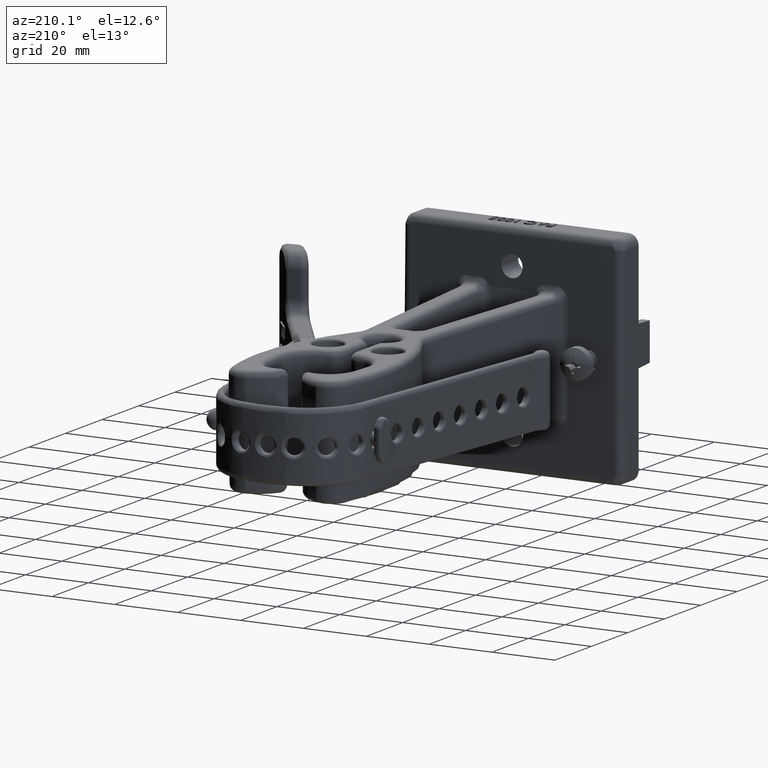
[diagram: clean part render]
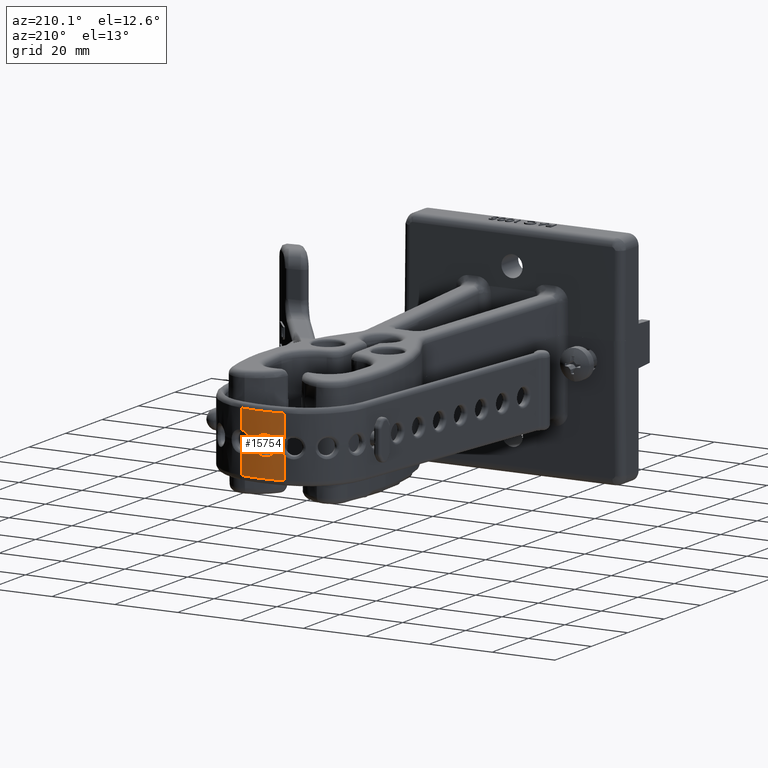
[diagram: same view with one face highlighted and labeled with its STEP entity id]
A machine part, auxiliary view. The second image highlights one B-rep face of the part: STEP entity #15754.
In plain terms, the highlighted cylindrical surface (partial cylindrical patch) has radius 37.703 mm, axis along (0, 0, 1).
Its self-contained STEP definition (entity closure, byte-faithful):
#2529 = CARTESIAN_POINT ( 'NONE',  ( -0.04435273395711793900, 5.269710581446657800, -0.1312497044361200800 ) ) ;
#2530 = CARTESIAN_POINT ( 'NONE',  ( -0.04516568751370418600, 5.269685953343534700, 0.1312489805817856300 ) ) ;
#2534 = CARTESIAN_POINT ( 'NONE',  ( 0.2673774705017385500, 5.246133752176259400, -0.1301733078765255100 ) ) ;
#2535 = CARTESIAN_POINT ( 'NONE',  ( 0.2673774705017385500, 5.246133752176259400, -0.3749999999999998900 ) ) ;
#2536 = CARTESIAN_POINT ( 'NONE',  ( 0.2673774705017385500, 5.246133752176259400, 0.1301733078765255100 ) ) ;
#2537 = CARTESIAN_POINT ( 'NONE',  ( 0.2673774705017385500, 5.246133752176259400, 0.3750000000000000600 ) ) ;
#2550 = CARTESIAN_POINT ( 'NONE',  ( -0.2669934998263762100, 5.246135022495447100, -0.3749999999999998900 ) ) ;
#2551 = CARTESIAN_POINT ( 'NONE',  ( -0.2669934998263762100, 5.246135022495447100, -0.08806893851219231600 ) ) ;
#2552 = CARTESIAN_POINT ( 'NONE',  ( -0.2669934998263762100, 5.246135022495447100, 0.08806893851219189900 ) ) ;
#2553 = CARTESIAN_POINT ( 'NONE',  ( -0.2669934998263762100, 5.246135022495447100, 0.3750000000000000600 ) ) ;
#15754 = ADVANCED_FACE ( 'NONE', ( #25073, #25077 ), #25076, .T. ) ;
#16780 = VERTEX_POINT ( 'NONE', #2529 ) ;
#16782 = VERTEX_POINT ( 'NONE', #2530 ) ;
#16790 = VERTEX_POINT ( 'NONE', #2534 ) ;
#16792 = VERTEX_POINT ( 'NONE', #2535 ) ;
#16794 = VERTEX_POINT ( 'NONE', #2536 ) ;
#16796 = VERTEX_POINT ( 'NONE', #2537 ) ;
#16821 = VERTEX_POINT ( 'NONE', #2550 ) ;
#16823 = VERTEX_POINT ( 'NONE', #2551 ) ;
#16825 = VERTEX_POINT ( 'NONE', #2552 ) ;
#16827 = VERTEX_POINT ( 'NONE', #2553 ) ;
#20146 = ORIENTED_EDGE ( 'NONE', *, *, #50071, .T. ) ;
#20147 = ORIENTED_EDGE ( 'NONE', *, *, #50107, .T. ) ;
#20148 = ORIENTED_EDGE ( 'NONE', *, *, #50088, .T. ) ;
#20149 = ORIENTED_EDGE ( 'NONE', *, *, #50109, .T. ) ;
#20150 = ORIENTED_EDGE ( 'NONE', *, *, #50085, .T. ) ;
#20151 = ORIENTED_EDGE ( 'NONE', *, *, #50108, .T. ) ;
#20152 = ORIENTED_EDGE ( 'NONE', *, *, #50111, .F. ) ;
#20153 = ORIENTED_EDGE ( 'NONE', *, *, #50110, .T. ) ;
#20154 = ORIENTED_EDGE ( 'NONE', *, *, #50106, .F. ) ;
#20155 = ORIENTED_EDGE ( 'NONE', *, *, #50112, .F. ) ;
#23961 = AXIS2_PLACEMENT_3D ( 'NONE', #41355, #41354, #41353 ) ;
#25073 = FACE_BOUND ( 'NONE', #48961, .T. ) ;
#25076 = CYLINDRICAL_SURFACE ( 'NONE', #23961, 1.484368405721443200 ) ;
#25077 = FACE_OUTER_BOUND ( 'NONE', #48971, .T. ) ;
#30481 = AXIS2_PLACEMENT_3D ( 'NONE', #42469, #42470, #42471 ) ;
#30485 = AXIS2_PLACEMENT_3D ( 'NONE', #42515, #42518, #42519 ) ;
#37262 = LINE ( 'NONE', #42149, #37272 ) ;
#37272 = VECTOR ( 'NONE', #42150, 39.37007874015748100 ) ;
#37274 = LINE ( 'NONE', #42219, #37275 ) ;
#37275 = VECTOR ( 'NONE', #42220, 39.37007874015748100 ) ;
#37288 = VECTOR ( 'NONE', #42517, 39.37007874015748100 ) ;
#37289 = LINE ( 'NONE', #42516, #37288 ) ;
#37290 = VECTOR ( 'NONE', #42434, 39.37007874015748100 ) ;
#37292 = LINE ( 'NONE', #42410, #37290 ) ;
#37295 = CIRCLE ( 'NONE', #30481, 1.484368405721443200 ) ;
#37296 = CIRCLE ( 'NONE', #30485, 1.484368405721443200 ) ;
#38615 = B_SPLINE_CURVE_WITH_KNOTS ( 'NONE', 3,
 ( #41876, #41979, #41980, #41981, #41982, #41983, #41984, #41985, #41986, #41987, #41988, #41989, #41990, #41991, #41992, #41993, #41994, #41995, #41996, #41997, #41998, #41999, #42000, #42001, #42002, #42003, #42004, #42005, #42006, #42007, #42008, #42009, #42010, #42011 ),
 .UNSPECIFIED., .F., .F.,
 ( 4, 2, 2, 2, 2, 2, 2, 2, 2, 2, 2, 2, 2, 2, 2, 2, 4 ),
 ( 4.489441446221552500E-005, 0.0007130646329133025100, 0.001381234851364389600, 0.002049405069815476600, 0.002717575288266563700, 0.003385745506717650800, 0.004053915725168737500, 0.004722085943619824600, 0.005390256162070911800, 0.006058426380521998900, 0.006726596598973086000, 0.007394766817424173200, 0.008062937035875258500, 0.008731107254326346500, 0.009399277472777432800, 0.01006744769122852100, 0.01073561790967960700 ),
 .UNSPECIFIED. ) ;
#38630 = B_SPLINE_CURVE_WITH_KNOTS ( 'NONE', 3,
 ( #42431, #42436, #42437, #42438, #42439, #42440, #42441, #42442, #42443, #42444, #42445, #42446, #42447, #42448, #42449, #42450, #42451, #42452, #42453, #42454, #42455, #42456, #42457, #42458, #42459, #42460, #42461, #42462, #42463, #42464, #42465, #42466, #42467, #42468 ),
 .UNSPECIFIED., .F., .F.,
 ( 4, 2, 2, 2, 2, 2, 2, 2, 2, 2, 2, 2, 2, 2, 2, 2, 4 ),
 ( 0.01073561790967960700, 0.01140370550405702400, 0.01207179309843444000, 0.01273988069281185900, 0.01340796828718927500, 0.01407605588156669200, 0.01474414347594410700, 0.01541223107032152300, 0.01608031866469893800, 0.01674840625907635500, 0.01741649385345377100, 0.01808458144783118400, 0.01875266904220860100, 0.01942075663658601700, 0.02008884423096343000, 0.02075693182534084700, 0.02142501941971826400 ),
 .UNSPECIFIED. ) ;
#38631 = B_SPLINE_CURVE_WITH_KNOTS ( 'NONE', 3,
 ( #42435, #42473, #42474, #42475, #42476, #42477, #42478, #42479, #42480, #42481, #42482, #42483, #42484, #42485, #42486, #42487, #42488, #42489, #42490, #42491, #42492, #42493, #42494, #42495, #42496, #42497 ),
 .UNSPECIFIED., .F., .F.,
 ( 4, 2, 2, 2, 2, 2, 2, 2, 2, 2, 2, 2, 4 ),
 ( 5.885214283637189900E-011, 0.001227839465342834200, 0.002455678871833525700, 0.003069598575078871400, 0.003683518278324217200, 0.004297437981569562900, 0.004911357684814908600, 0.005525277388060254400, 0.006139197091305600100, 0.006753116794550945900, 0.007367036497796291600, 0.008594875904286983900, 0.009822715310777675400 ),
 .UNSPECIFIED. ) ;
#38632 = B_SPLINE_CURVE_WITH_KNOTS ( 'NONE', 3,
 ( #42472, #42498, #42499, #42500, #42501, #42502, #42503, #42504, #42505, #42506, #42507, #42508, #42509, #42510, #42511, #42512, #42513, #42514 ),
 .UNSPECIFIED., .F., .F.,
 ( 4, 2, 2, 2, 2, 2, 2, 2, 4 ),
 ( 4.336808689942017700E-019, 0.0006147958119814926900, 0.001229591623962984900, 0.001844387435944477200, 0.002459183247925969500, 0.003073979059907461500, 0.003688774871888954000, 0.004303570683870446000, 0.004918366495851938000 ),
 .UNSPECIFIED. ) ;
#41353 = DIRECTION ( 'NONE',  ( 1.000000000000000000, 0.0000000000000000000, 0.0000000000000000000 ) ) ;
#41354 = DIRECTION ( 'NONE',  ( 0.0000000000000000000, 0.0000000000000000000, 1.000000000000000000 ) ) ;
#41355 = CARTESIAN_POINT ( 'NONE',  ( 0.0001885142972064028300, 3.786010597923045800, 0.0000000000000000000 ) ) ;
#41876 = CARTESIAN_POINT ( 'NONE',  ( -0.04516568751370418600, 5.269685953343534700, 0.1312489805817856300 ) ) ;
#41979 = CARTESIAN_POINT ( 'NONE',  ( -0.05393035000269182800, 5.269418027971667600, 0.1312151633102342000 ) ) ;
#41980 = CARTESIAN_POINT ( 'NONE',  ( -0.06255021083948743300, 5.269076849687537300, 0.1303486269323293200 ) ) ;
#41981 = CARTESIAN_POINT ( 'NONE',  ( -0.07951191989786748900, 5.268262093298804200, 0.1270145647898825200 ) ) ;
#41982 = CARTESIAN_POINT ( 'NONE',  ( -0.08793711905027724900, 5.267782688588545700, 0.1245094134668665300 ) ) ;
#41983 = CARTESIAN_POINT ( 'NONE',  ( -0.1040391387164135200, 5.266737193981671600, 0.1179736660339484200 ) ) ;
#41984 = CARTESIAN_POINT ( 'NONE',  ( -0.1116897362951039700, 5.266174693354885900, 0.1139762315733826600 ) ) ;
#41985 = CARTESIAN_POINT ( 'NONE',  ( -0.1261931897714777000, 5.265006932346443200, 0.1045229280727964100 ) ) ;
#41986 = CARTESIAN_POINT ( 'NONE',  ( -0.1330779555305167700, 5.264397635986753700, 0.09901404510086869700 ) ) ;
#41987 = CARTESIAN_POINT ( 'NONE',  ( -0.1454523646060189600, 5.263229918365147400, 0.08694493976842952700 ) ) ;
#41988 = CARTESIAN_POINT ( 'NONE',  ( -0.1510200178536557600, 5.262665631119904900, 0.08034694641678982700 ) ) ;
#41989 = CARTESIAN_POINT ( 'NONE',  ( -0.1608733026673568900, 5.261623419220324400, 0.06598100234432316400 ) ) ;
#41990 = CARTESIAN_POINT ( 'NONE',  ( -0.1650781739507138100, 5.261153985039699800, 0.05830087583059273500 ) ) ;
#41991 = CARTESIAN_POINT ( 'NONE',  ( -0.1718244656150597900, 5.260382540663457000, 0.04240307085330202700 ) ) ;
#41992 = CARTESIAN_POINT ( 'NONE',  ( -0.1744227147860159300, 5.260074208371003500, 0.03406311220566243800 ) ) ;
#41993 = CARTESIAN_POINT ( 'NONE',  ( -0.1778880217072513500, 5.259659591507840100, 0.01693427311604430900 ) ) ;
#41994 = CARTESIAN_POINT ( 'NONE',  ( -0.1787318410679552500, 5.259556345719751400, 0.008323431651455165000 ) ) ;
#41995 = CARTESIAN_POINT ( 'NONE',  ( -0.1786870159447401500, 5.259561787768314300, -0.008988790430918710400 ) ) ;
#41996 = CARTESIAN_POINT ( 'NONE',  ( -0.1777679304083507900, 5.259674146567965300, -0.01778545391472548900 ) ) ;
#41997 = CARTESIAN_POINT ( 'NONE',  ( -0.1742227839958961100, 5.260097925676965300, -0.03476905033937476000 ) ) ;
#41998 = CARTESIAN_POINT ( 'NONE',  ( -0.1716166662094345500, 5.260406924989244000, -0.04300766926309401700 ) ) ;
#41999 = CARTESIAN_POINT ( 'NONE',  ( -0.1647373597924354800, 5.261192283469262600, -0.05897949125778980500 ) ) ;
#42000 = CARTESIAN_POINT ( 'NONE',  ( -0.1604593513591108200, 5.261668529629487200, -0.06666510660919325300 ) ) ;
#42001 = CARTESIAN_POINT ( 'NONE',  ( -0.1506136318897411100, 5.262707175034766000, -0.08085184743654080800 ) ) ;
#42002 = CARTESIAN_POINT ( 'NONE',  ( -0.1449997767349060200, 5.263274928259199300, -0.08745497957080240700 ) ) ;
#42003 = CARTESIAN_POINT ( 'NONE',  ( -0.1324096838248182400, 5.264458182178620900, -0.09959079783651607300 ) ) ;
#42004 = CARTESIAN_POINT ( 'NONE',  ( -0.1256226589771628800, 5.265055593911415400, -0.1049452495280502500 ) ) ;
#42005 = CARTESIAN_POINT ( 'NONE',  ( -0.1111106552202010100, 5.266218369265857300, -0.1142990545075239200 ) ) ;
#42006 = CARTESIAN_POINT ( 'NONE',  ( -0.1032960691696685900, 5.266789390918117600, -0.1183290402229299500 ) ) ;
#42007 = CARTESIAN_POINT ( 'NONE',  ( -0.08716424448224198400, 5.267828531521122800, -0.1247640466050764500 ) ) ;
#42008 = CARTESIAN_POINT ( 'NONE',  ( -0.07887369120279877400, 5.268296456853431800, -0.1271824290481503300 ) ) ;
#42009 = CARTESIAN_POINT ( 'NONE',  ( -0.06184760054764992800, 5.269106589549505100, -0.1304408446881009100 ) ) ;
#42010 = CARTESIAN_POINT ( 'NONE',  ( -0.05306645841098602000, 5.269448992063070500, -0.1312678076165207100 ) ) ;
#42011 = CARTESIAN_POINT ( 'NONE',  ( -0.04435273395711793900, 5.269710581446657800, -0.1312497044361200800 ) ) ;
#42149 = CARTESIAN_POINT ( 'NONE',  ( 0.2673774705017385500, 5.246133752176259400, 0.3750000000000000600 ) ) ;
#42150 = DIRECTION ( 'NONE',  ( 0.0000000000000000000, 0.0000000000000000000, -1.000000000000000000 ) ) ;
#42219 = CARTESIAN_POINT ( 'NONE',  ( 0.2673774705017385500, 5.246133752176259400, 0.3750000000000000600 ) ) ;
#42220 = DIRECTION ( 'NONE',  ( 0.0000000000000000000, 0.0000000000000000000, -1.000000000000000000 ) ) ;
#42410 = CARTESIAN_POINT ( 'NONE',  ( -0.2669934998263762100, 5.246135022495447100, 0.3750000000000000600 ) ) ;
#42431 = CARTESIAN_POINT ( 'NONE',  ( -0.04435273395711793900, 5.269710581446657800, -0.1312497044361200800 ) ) ;
#42434 = DIRECTION ( 'NONE',  ( 0.0000000000000000000, 0.0000000000000000000, -1.000000000000000000 ) ) ;
#42435 = CARTESIAN_POINT ( 'NONE',  ( 0.2673774705017385500, 5.246133752176259400, 0.1301733078765255100 ) ) ;
#42436 = CARTESIAN_POINT ( 'NONE',  ( -0.03564008701821740100, 5.269972138482830600, -0.1312316034943084900 ) ) ;
#42437 = CARTESIAN_POINT ( 'NONE',  ( -0.02685889498729722800, 5.270156992052239500, -0.1303684208295244300 ) ) ;
#42438 = CARTESIAN_POINT ( 'NONE',  ( -0.009828763107762480300, 5.270369629865482100, -0.1270341483534596100 ) ) ;
#42439 = CARTESIAN_POINT ( 'NONE',  ( -0.001536813182373432300, 5.270399913646874900, -0.1245763888724969500 ) ) ;
#42440 = CARTESIAN_POINT ( 'NONE',  ( 0.01459418791720116400, 5.270331012778791000, -0.1180564826309170600 ) ) ;
#42441 = CARTESIAN_POINT ( 'NONE',  ( 0.02240398396471893600, 5.270230452652697300, -0.1139820847995071000 ) ) ;
#42442 = CARTESIAN_POINT ( 'NONE',  ( 0.03689807424162917100, 5.269942709737780900, -0.1045378019715489100 ) ) ;
#42443 = CARTESIAN_POINT ( 'NONE',  ( 0.04367208815440817200, 5.269755245752159900, -0.09913669126156983400 ) ) ;
#42444 = CARTESIAN_POINT ( 'NONE',  ( 0.05622484635508532400, 5.269334207472371500, -0.08690449935323711600 ) ) ;
#42445 = CARTESIAN_POINT ( 'NONE',  ( 0.06180439257250271900, 5.269107690925125100, -0.08026521475679739000 ) ) ;
#42446 = CARTESIAN_POINT ( 'NONE',  ( 0.07158023396571569500, 5.268669266022223000, -0.06600385944193598600 ) ) ;
#42447 = CARTESIAN_POINT ( 'NONE',  ( 0.07581745290902371100, 5.268454988968366900, -0.05828305293015251900 ) ) ;
#42448 = CARTESIAN_POINT ( 'NONE',  ( 0.08260340128519501300, 5.268093218865629100, -0.04226220585566926900 ) ) ;
#42449 = CARTESIAN_POINT ( 'NONE',  ( 0.08515933738337271000, 5.267945985482573000, -0.03400602878493472900 ) ) ;
#42450 = CARTESIAN_POINT ( 'NONE',  ( 0.08860006031946872400, 5.267744694246366600, -0.01700260453690830400 ) ) ;
#42451 = CARTESIAN_POINT ( 'NONE',  ( 0.08946518942503643700, 5.267691818741505800, -0.008201004115463112600 ) ) ;
#42452 = CARTESIAN_POINT ( 'NONE',  ( 0.08940385323182042900, 5.267695513195772800, 0.009111430169977207900 ) ) ;
#42453 = CARTESIAN_POINT ( 'NONE',  ( 0.08850721635018828100, 5.267750307126534400, 0.01771607703856641100 ) ) ;
#42454 = CARTESIAN_POINT ( 'NONE',  ( 0.08493835087518818200, 5.267958715828245700, 0.03481966451846437600 ) ) ;
#42455 = CARTESIAN_POINT ( 'NONE',  ( 0.08228728595359390000, 5.268110837057338200, 0.04315197911441450600 ) ) ;
#42456 = CARTESIAN_POINT ( 'NONE',  ( 0.07543740989412631200, 5.268474402156007500, 0.05902133916076628800 ) ) ;
#42457 = CARTESIAN_POINT ( 'NONE',  ( 0.07118073641116542900, 5.268688750485523500, 0.06668315326925430800 ) ) ;
#42458 = CARTESIAN_POINT ( 'NONE',  ( 0.06122349534680001500, 5.269132012634272200, 0.08100611333335708300 ) ) ;
#42459 = CARTESIAN_POINT ( 'NONE',  ( 0.05560430515686782400, 5.269357360995616800, 0.08757965220754146400 ) ) ;
#42460 = CARTESIAN_POINT ( 'NONE',  ( 0.04312668963025329000, 5.269770970251931500, 0.09959077447511634200 ) ) ;
#42461 = CARTESIAN_POINT ( 'NONE',  ( 0.03618997775108943900, 5.269960303954295700, 0.1050651507133646600 ) ) ;
#42462 = CARTESIAN_POINT ( 'NONE',  ( 0.02159524218216211600, 5.270242583632261300, 0.1144358532286220800 ) ) ;
#42463 = CARTESIAN_POINT ( 'NONE',  ( 0.01390300135841231500, 5.270337680233974500, 0.1183866547854955000 ) ) ;
#42464 = CARTESIAN_POINT ( 'NONE',  ( -0.002272238123210436900, 5.270398996939473300, 0.1248181381199308100 ) ) ;
#42465 = CARTESIAN_POINT ( 'NONE',  ( -0.01072771771458626100, 5.270363248006306700, 0.1272656886076366800 ) ) ;
#42466 = CARTESIAN_POINT ( 'NONE',  ( -0.02774272651348600300, 5.270140578658329700, 0.1304797812743648300 ) ) ;
#42467 = CARTESIAN_POINT ( 'NONE',  ( -0.03640210883854003200, 5.269953845584494100, 0.1312827936715871800 ) ) ;
#42468 = CARTESIAN_POINT ( 'NONE',  ( -0.04516568751370418600, 5.269685953343534700, 0.1312489805817856300 ) ) ;
#42469 = CARTESIAN_POINT ( 'NONE',  ( 0.0001885142972064028300, 3.786010597923045800, -0.3749999999999998900 ) ) ;
#42470 = DIRECTION ( 'NONE',  ( 0.0000000000000000000, 0.0000000000000000000, 1.000000000000000000 ) ) ;
#42471 = DIRECTION ( 'NONE',  ( 1.000000000000000000, 0.0000000000000000000, 0.0000000000000000000 ) ) ;
#42472 = CARTESIAN_POINT ( 'NONE',  ( -0.2669934998263762100, 5.246135022495447100, -0.08806893851219231600 ) ) ;
#42473 = CARTESIAN_POINT ( 'NONE',  ( 0.2514280895461857300, 5.249052340541362900, 0.1281804340732040100 ) ) ;
#42474 = CARTESIAN_POINT ( 'NONE',  ( 0.2361593876343233100, 5.251575775417155300, 0.1235611670300355000 ) ) ;
#42475 = CARTESIAN_POINT ( 'NONE',  ( 0.2072309470700632300, 5.255941539694908300, 0.1090963462122307600 ) ) ;
#42476 = CARTESIAN_POINT ( 'NONE',  ( 0.1942482745861138500, 5.257682277825796100, 0.09957387337438639000 ) ) ;
#42477 = CARTESIAN_POINT ( 'NONE',  ( 0.1774623344304956900, 5.259766122635731700, 0.08192009429930505200 ) ) ;
#42478 = CARTESIAN_POINT ( 'NONE',  ( 0.1724646205102500500, 5.260354555701820100, 0.07561598390091954500 ) ) ;
#42479 = CARTESIAN_POINT ( 'NONE',  ( 0.1636673433373291600, 5.261355925318087900, 0.06216964472009314100 ) ) ;
#42480 = CARTESIAN_POINT ( 'NONE',  ( 0.1598404210940059500, 5.261771605822484200, 0.05495979469318617400 ) ) ;
#42481 = CARTESIAN_POINT ( 'NONE',  ( 0.1536398535158761400, 5.262429227672825500, 0.03993416831425332400 ) ) ;
#42482 = CARTESIAN_POINT ( 'NONE',  ( 0.1512957909358374500, 5.262668549442682100, 0.03222794996288693600 ) ) ;
#42483 = CARTESIAN_POINT ( 'NONE',  ( 0.1481177079260216600, 5.262990309534430400, 0.01642988712168469800 ) ) ;
#42484 = CARTESIAN_POINT ( 'NONE',  ( 0.1472891688537820200, 5.263072194950458600, 0.008239242815788888600 ) ) ;
#42485 = CARTESIAN_POINT ( 'NONE',  ( 0.1472713580866644200, 5.263073968617396400, -0.007968951411331928700 ) ) ;
#42486 = CARTESIAN_POINT ( 'NONE',  ( 0.1480570258849019100, 5.262996364328221200, -0.01598834243071900500 ) ) ;
#42487 = CARTESIAN_POINT ( 'NONE',  ( 0.1511950331428720300, 5.262678834917651600, -0.03186002739128649500 ) ) ;
#42488 = CARTESIAN_POINT ( 'NONE',  ( 0.1535801185940549000, 5.262435358649655700, -0.03974682943659410600 ) ) ;
#42489 = CARTESIAN_POINT ( 'NONE',  ( 0.1597084043304200000, 5.261785805412039000, -0.05468115940218593000 ) ) ;
#42490 = CARTESIAN_POINT ( 'NONE',  ( 0.1634605366259306600, 5.261378921975415700, -0.06181663198867504100 ) ) ;
#42491 = CARTESIAN_POINT ( 'NONE',  ( 0.1723210609716797900, 5.260371419183490700, -0.07543204502384240300 ) ) ;
#42492 = CARTESIAN_POINT ( 'NONE',  ( 0.1773827927097242900, 5.259775438250224000, -0.08181814777747978300 ) ) ;
#42493 = CARTESIAN_POINT ( 'NONE',  ( 0.1939732063005246100, 5.257717521525713700, -0.09932046073271916200 ) ) ;
#42494 = CARTESIAN_POINT ( 'NONE',  ( 0.2072429099808018900, 5.255938081776044200, -0.1090788719125881500 ) ) ;
#42495 = CARTESIAN_POINT ( 'NONE',  ( 0.2358173508471655700, 5.251629027782747100, -0.1234133282365932300 ) ) ;
#42496 = CARTESIAN_POINT ( 'NONE',  ( 0.2514250735965675700, 5.249052892432089800, -0.1281800572290060800 ) ) ;
#42497 = CARTESIAN_POINT ( 'NONE',  ( 0.2673774705017385500, 5.246133752176259400, -0.1301733078765255100 ) ) ;
#42498 = CARTESIAN_POINT ( 'NONE',  ( -0.2614530241358190600, 5.247148850789318300, -0.08213351258006523800 ) ) ;
#42499 = CARTESIAN_POINT ( 'NONE',  ( -0.2565192961971826100, 5.248019487601130400, -0.07577967719204889400 ) ) ;
#42500 = CARTESIAN_POINT ( 'NONE',  ( -0.2478542414117919600, 5.249514504582286600, -0.06224717149121119400 ) ) ;
#42501 = CARTESIAN_POINT ( 'NONE',  ( -0.2440970919029821500, 5.250142964455737800, -0.05500219016390460500 ) ) ;
#42502 = CARTESIAN_POINT ( 'NONE',  ( -0.2380209727871497000, 5.251143794730836600, -0.03992683553786671000 ) ) ;
#42503 = CARTESIAN_POINT ( 'NONE',  ( -0.2357276895182783000, 5.251512415906235600, -0.03219802425734393700 ) ) ;
#42504 = CARTESIAN_POINT ( 'NONE',  ( -0.2326239749352359000, 5.252008680661269600, -0.01636072019493305800 ) ) ;
#42505 = CARTESIAN_POINT ( 'NONE',  ( -0.2318198105019857200, 5.252135320154375000, -0.008156816119715385900 ) ) ;
#42506 = CARTESIAN_POINT ( 'NONE',  ( -0.2318135643842355900, 5.252136308563682300, 0.008059767781641823100 ) ) ;
#42507 = CARTESIAN_POINT ( 'NONE',  ( -0.2325868509687559800, 5.252014564526182200, 0.01608757705648437800 ) ) ;
#42508 = CARTESIAN_POINT ( 'NONE',  ( -0.2356697998880471800, 5.251521722548351300, 0.03198381401825238500 ) ) ;
#42509 = CARTESIAN_POINT ( 'NONE',  ( -0.2380110343683733100, 5.251145352465654200, 0.03988534123865188800 ) ) ;
#42510 = CARTESIAN_POINT ( 'NONE',  ( -0.2440323979589831500, 5.250153698842446200, 0.05485830819952180300 ) ) ;
#42511 = CARTESIAN_POINT ( 'NONE',  ( -0.2477213675378098800, 5.249537106351507300, 0.06201733694302705900 ) ) ;
#42512 = CARTESIAN_POINT ( 'NONE',  ( -0.2564439248561264400, 5.248032807589665600, 0.07568376222756503800 ) ) ;
#42513 = CARTESIAN_POINT ( 'NONE',  ( -0.2614520053964331500, 5.247149037360873800, 0.08213235040172269000 ) ) ;
#42514 = CARTESIAN_POINT ( 'NONE',  ( -0.2669934998263762100, 5.246135022495447100, 0.08806893851219189900 ) ) ;
#42515 = CARTESIAN_POINT ( 'NONE',  ( 0.0001885142972064028300, 3.786010597923045800, 0.3750000000000000600 ) ) ;
#42516 = CARTESIAN_POINT ( 'NONE',  ( -0.2669934998263762100, 5.246135022495447100, 0.3750000000000000600 ) ) ;
#42517 = DIRECTION ( 'NONE',  ( 0.0000000000000000000, 0.0000000000000000000, -1.000000000000000000 ) ) ;
#42518 = DIRECTION ( 'NONE',  ( 0.0000000000000000000, 0.0000000000000000000, 1.000000000000000000 ) ) ;
#42519 = DIRECTION ( 'NONE',  ( 1.000000000000000000, 0.0000000000000000000, 0.0000000000000000000 ) ) ;
#48961 = EDGE_LOOP ( 'NONE', ( #20146, #20147 ) ) ;
#48971 = EDGE_LOOP ( 'NONE', ( #20148, #20149, #20150, #20151, #20152, #20153, #20154, #20155 ) ) ;
#50071 = EDGE_CURVE ( 'NONE', #16782, #16780, #38615, .T. ) ;
#50085 = EDGE_CURVE ( 'NONE', #16790, #16792, #37262, .T. ) ;
#50088 = EDGE_CURVE ( 'NONE', #16796, #16794, #37274, .T. ) ;
#50106 = EDGE_CURVE ( 'NONE', #16827, #16825, #37292, .T. ) ;
#50107 = EDGE_CURVE ( 'NONE', #16780, #16782, #38630, .T. ) ;
#50108 = EDGE_CURVE ( 'NONE', #16792, #16821, #37295, .T. ) ;
#50109 = EDGE_CURVE ( 'NONE', #16794, #16790, #38631, .T. ) ;
#50110 = EDGE_CURVE ( 'NONE', #16823, #16825, #38632, .T. ) ;
#50111 = EDGE_CURVE ( 'NONE', #16823, #16821, #37289, .T. ) ;
#50112 = EDGE_CURVE ( 'NONE', #16796, #16827, #37296, .T. ) ;